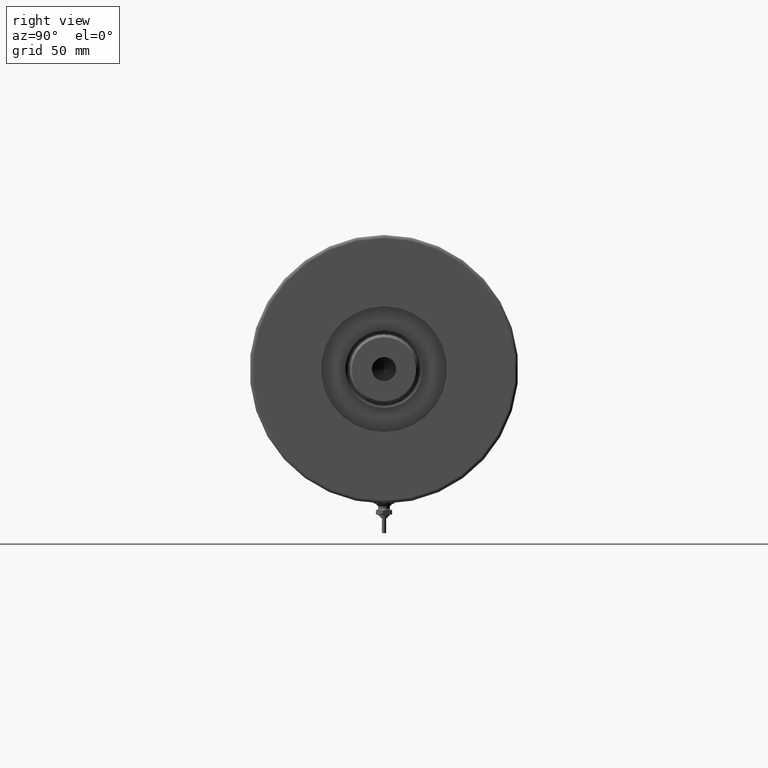
[diagram: clean part render]
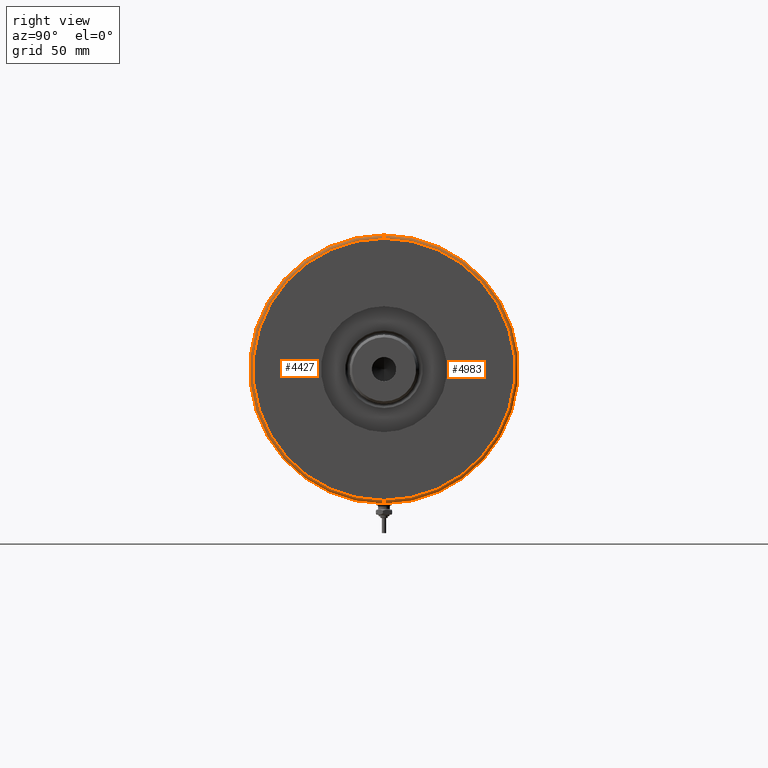
[diagram: same view with one multi-face feature highlighted, each face labeled with its STEP entity id]
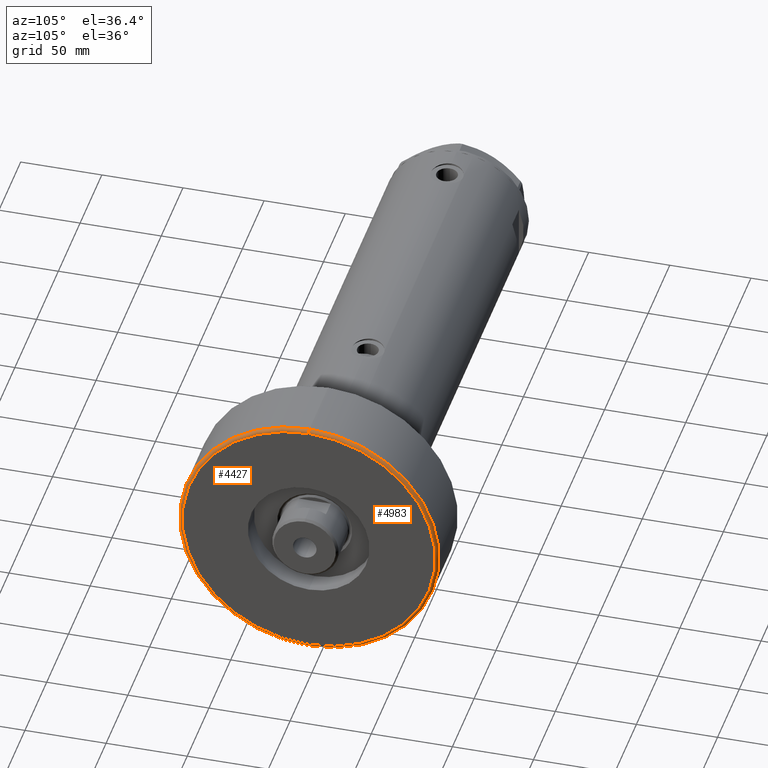
[diagram: same view with one multi-face feature highlighted, each face labeled with its STEP entity id]
A machine part, right view. The highlighted faces form ONE feature: a constant-radius fillet chain: 2 tangent blend faces with common blend radius 2 mm. The faces share edges in the B-rep.
A second angle (auxiliary view) of the same feature is appended — it is thin or edge-on in the first view.
Their STEP definitions:
[1] entity #4427 (Torus):
#236 = AXIS2_PLACEMENT_3D ( 'NONE', #6277, #3835, #1365 ) ;
#284 = ORIENTED_EDGE ( 'NONE', *, *, #3605, .F. ) ;
#308 = EDGE_CURVE ( 'NONE', #1959, #3546, #846, .T. ) ;
#516 = CIRCLE ( 'NONE', #3393, 80.00000000000000000 ) ;
#561 = VERTEX_POINT ( 'NONE', #2700 ) ;
#635 = CIRCLE ( 'NONE', #1762, 78.00000000000000000 ) ;
#717 = VERTEX_POINT ( 'NONE', #3115 ) ;
#776 = DIRECTION ( 'NONE',  ( 0.000000000000000000, -1.000000000000000000, 0.000000000000000000 ) ) ;
#846 = CIRCLE ( 'NONE', #2180, 2.000000000000001776 ) ;
#1365 = DIRECTION ( 'NONE',  ( -1.000000000000000000, 1.224646799147349509E-16, 0.000000000000000000 ) ) ;
#1762 = AXIS2_PLACEMENT_3D ( 'NONE', #4349, #2925, #2292 ) ;
#1959 = VERTEX_POINT ( 'NONE', #5901 ) ;
#1999 = CARTESIAN_POINT ( 'NONE',  ( 78.00000000000000000, 0.000000000000000000, 46.00000000000000000 ) ) ;
#2069 = DIRECTION ( 'NONE',  ( 0.000000000000000000, 0.000000000000000000, 1.000000000000000000 ) ) ;
#2180 = AXIS2_PLACEMENT_3D ( 'NONE', #4746, #776, #2865 ) ;
#2292 = DIRECTION ( 'NONE',  ( 1.000000000000000000, 0.000000000000000000, 0.000000000000000000 ) ) ;
#2373 = AXIS2_PLACEMENT_3D ( 'NONE', #2491, #2069, #2962 ) ;
#2446 = DIRECTION ( 'NONE',  ( -0.000000000000000000, -0.000000000000000000, -1.000000000000000000 ) ) ;
#2491 = CARTESIAN_POINT ( 'NONE',  ( 0.000000000000000000, 0.000000000000000000, 44.00000000000000000 ) ) ;
#2580 = DIRECTION ( 'NONE',  ( 1.000000000000000000, 0.000000000000000000, 0.000000000000000000 ) ) ;
#2700 = CARTESIAN_POINT ( 'NONE',  ( -78.00000000000000000, 9.674709713264090904E-15, 46.00000000000000000 ) ) ;
#2865 = DIRECTION ( 'NONE',  ( 0.000000000000000000, 0.000000000000000000, -1.000000000000000000 ) ) ;
#2925 = DIRECTION ( 'NONE',  ( 0.000000000000000000, 0.000000000000000000, 1.000000000000000000 ) ) ;
#2962 = DIRECTION ( 'NONE',  ( 1.000000000000000000, 0.000000000000000000, 0.000000000000000000 ) ) ;
#2996 = CIRCLE ( 'NONE', #236, 2.000000000000001776 ) ;
#3115 = CARTESIAN_POINT ( 'NONE',  ( -80.00000000000000000, 0.000000000000000000, 44.00000000000000000 ) ) ;
#3393 = AXIS2_PLACEMENT_3D ( 'NONE', #3475, #2446, #2580 ) ;
#3474 = ORIENTED_EDGE ( 'NONE', *, *, #4940, .F. ) ;
#3475 = CARTESIAN_POINT ( 'NONE',  ( 0.000000000000000000, 0.000000000000000000, 44.00000000000000000 ) ) ;
#3546 = VERTEX_POINT ( 'NONE', #1999 ) ;
#3605 = EDGE_CURVE ( 'NONE', #1959, #717, #516, .T. ) ;
#3835 = DIRECTION ( 'NONE',  ( 1.224646799147353207E-16, 1.000000000000000000, -0.000000000000000000 ) ) ;
#4349 = CARTESIAN_POINT ( 'NONE',  ( 0.000000000000000000, 0.000000000000000000, 46.00000000000000000 ) ) ;
#4427 = ADVANCED_FACE ( 'NONE', ( #5520 ), #4646, .T. ) ;
#4587 = EDGE_LOOP ( 'NONE', ( #5481, #284, #4859, #3474 ) ) ;
#4646 = TOROIDAL_SURFACE ( 'NONE', #2373, 78.00000000000000000, 2.000000000000000000 ) ;
#4746 = CARTESIAN_POINT ( 'NONE',  ( 78.00000000000000000, 0.000000000000000000, 44.00000000000000000 ) ) ;
#4859 = ORIENTED_EDGE ( 'NONE', *, *, #308, .T. ) ;
#4940 = EDGE_CURVE ( 'NONE', #561, #3546, #635, .T. ) ;
#5481 = ORIENTED_EDGE ( 'NONE', *, *, #6111, .F. ) ;
#5520 = FACE_OUTER_BOUND ( 'NONE', #4587, .T. ) ;
#5901 = CARTESIAN_POINT ( 'NONE',  ( 80.00000000000000000, 9.797174393178826052E-15, 44.00000000000000000 ) ) ;
#6111 = EDGE_CURVE ( 'NONE', #717, #561, #2996, .T. ) ;
#6277 = CARTESIAN_POINT ( 'NONE',  ( -78.00000000000000000, 9.552245033349355756E-15, 44.00000000000000000 ) ) ;
[2] entity #4983 (Torus):
#143 = ORIENTED_EDGE ( 'NONE', *, *, #1956, .F. ) ;
#208 = ORIENTED_EDGE ( 'NONE', *, *, #6111, .T. ) ;
#236 = AXIS2_PLACEMENT_3D ( 'NONE', #6277, #3835, #1365 ) ;
#308 = EDGE_CURVE ( 'NONE', #1959, #3546, #846, .T. ) ;
#328 = TOROIDAL_SURFACE ( 'NONE', #436, 78.00000000000000000, 2.000000000000000000 ) ;
#376 = CARTESIAN_POINT ( 'NONE',  ( 0.000000000000000000, 0.000000000000000000, 44.00000000000000000 ) ) ;
#436 = AXIS2_PLACEMENT_3D ( 'NONE', #4013, #3545, #1033 ) ;
#561 = VERTEX_POINT ( 'NONE', #2700 ) ;
#717 = VERTEX_POINT ( 'NONE', #3115 ) ;
#776 = DIRECTION ( 'NONE',  ( 0.000000000000000000, -1.000000000000000000, 0.000000000000000000 ) ) ;
#846 = CIRCLE ( 'NONE', #2180, 2.000000000000001776 ) ;
#932 = ORIENTED_EDGE ( 'NONE', *, *, #2968, .F. ) ;
#1033 = DIRECTION ( 'NONE',  ( 1.000000000000000000, 0.000000000000000000, 0.000000000000000000 ) ) ;
#1365 = DIRECTION ( 'NONE',  ( -1.000000000000000000, 1.224646799147349509E-16, 0.000000000000000000 ) ) ;
#1454 = FACE_OUTER_BOUND ( 'NONE', #3206, .T. ) ;
#1956 = EDGE_CURVE ( 'NONE', #3546, #561, #3586, .T. ) ;
#1959 = VERTEX_POINT ( 'NONE', #5901 ) ;
#1999 = CARTESIAN_POINT ( 'NONE',  ( 78.00000000000000000, 0.000000000000000000, 46.00000000000000000 ) ) ;
#2154 = CIRCLE ( 'NONE', #3695, 80.00000000000000000 ) ;
#2180 = AXIS2_PLACEMENT_3D ( 'NONE', #4746, #776, #2865 ) ;
#2333 = DIRECTION ( 'NONE',  ( -0.000000000000000000, -0.000000000000000000, -1.000000000000000000 ) ) ;
#2510 = DIRECTION ( 'NONE',  ( 1.000000000000000000, 0.000000000000000000, 0.000000000000000000 ) ) ;
#2700 = CARTESIAN_POINT ( 'NONE',  ( -78.00000000000000000, 9.674709713264090904E-15, 46.00000000000000000 ) ) ;
#2865 = DIRECTION ( 'NONE',  ( 0.000000000000000000, 0.000000000000000000, -1.000000000000000000 ) ) ;
#2968 = EDGE_CURVE ( 'NONE', #717, #1959, #2154, .T. ) ;
#2996 = CIRCLE ( 'NONE', #236, 2.000000000000001776 ) ;
#3064 = AXIS2_PLACEMENT_3D ( 'NONE', #3948, #3916, #2510 ) ;
#3115 = CARTESIAN_POINT ( 'NONE',  ( -80.00000000000000000, 0.000000000000000000, 44.00000000000000000 ) ) ;
#3206 = EDGE_LOOP ( 'NONE', ( #932, #208, #143, #6249 ) ) ;
#3545 = DIRECTION ( 'NONE',  ( 0.000000000000000000, 0.000000000000000000, 1.000000000000000000 ) ) ;
#3546 = VERTEX_POINT ( 'NONE', #1999 ) ;
#3586 = CIRCLE ( 'NONE', #3064, 78.00000000000000000 ) ;
#3695 = AXIS2_PLACEMENT_3D ( 'NONE', #376, #2333, #6320 ) ;
#3835 = DIRECTION ( 'NONE',  ( 1.224646799147353207E-16, 1.000000000000000000, -0.000000000000000000 ) ) ;
#3916 = DIRECTION ( 'NONE',  ( 0.000000000000000000, 0.000000000000000000, 1.000000000000000000 ) ) ;
#3948 = CARTESIAN_POINT ( 'NONE',  ( 0.000000000000000000, 0.000000000000000000, 46.00000000000000000 ) ) ;
#4013 = CARTESIAN_POINT ( 'NONE',  ( 0.000000000000000000, 0.000000000000000000, 44.00000000000000000 ) ) ;
#4746 = CARTESIAN_POINT ( 'NONE',  ( 78.00000000000000000, 0.000000000000000000, 44.00000000000000000 ) ) ;
#4983 = ADVANCED_FACE ( 'NONE', ( #1454 ), #328, .T. ) ;
#5901 = CARTESIAN_POINT ( 'NONE',  ( 80.00000000000000000, 9.797174393178826052E-15, 44.00000000000000000 ) ) ;
#6111 = EDGE_CURVE ( 'NONE', #717, #561, #2996, .T. ) ;
#6249 = ORIENTED_EDGE ( 'NONE', *, *, #308, .F. ) ;
#6277 = CARTESIAN_POINT ( 'NONE',  ( -78.00000000000000000, 9.552245033349355756E-15, 44.00000000000000000 ) ) ;
#6320 = DIRECTION ( 'NONE',  ( 1.000000000000000000, 0.000000000000000000, 0.000000000000000000 ) ) ;